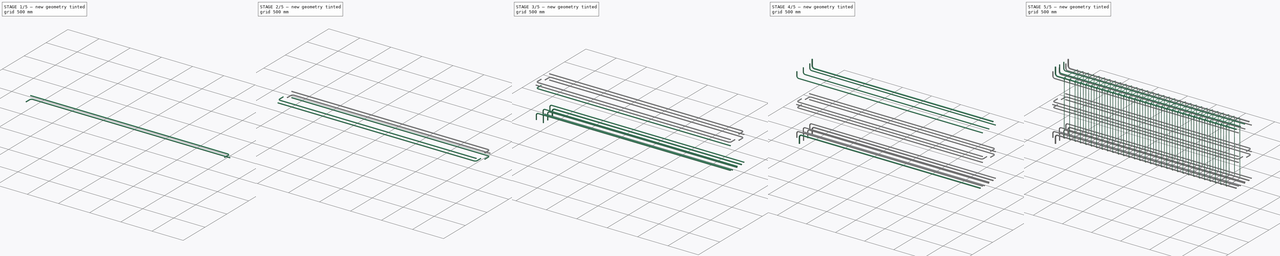
[diagram: build sequence overview — one tinted view per stage of 5, left to right]
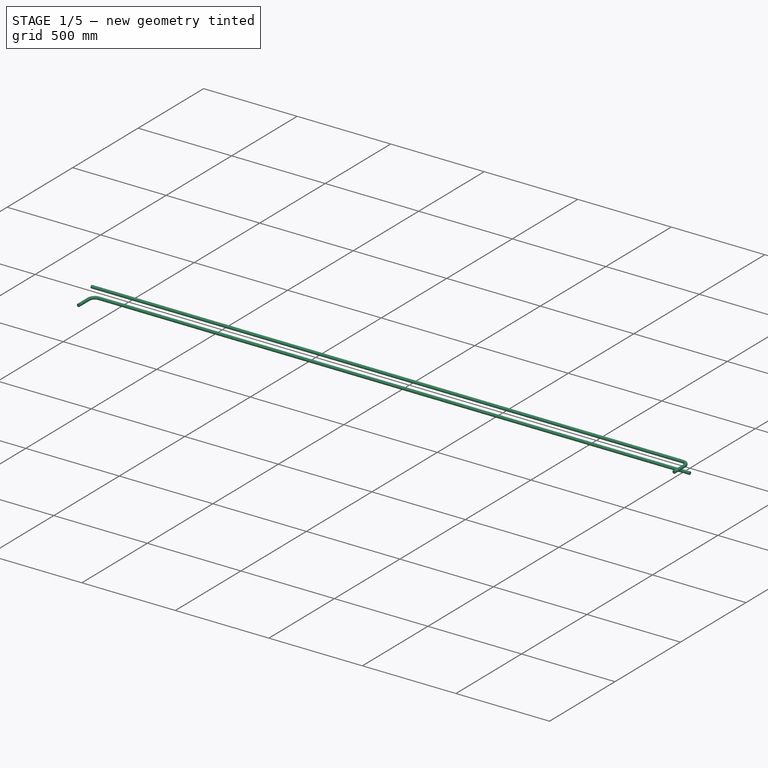
[diagram: stage 1 of 5 — iso view after this stage's code; geometry added in this stage tinted green]
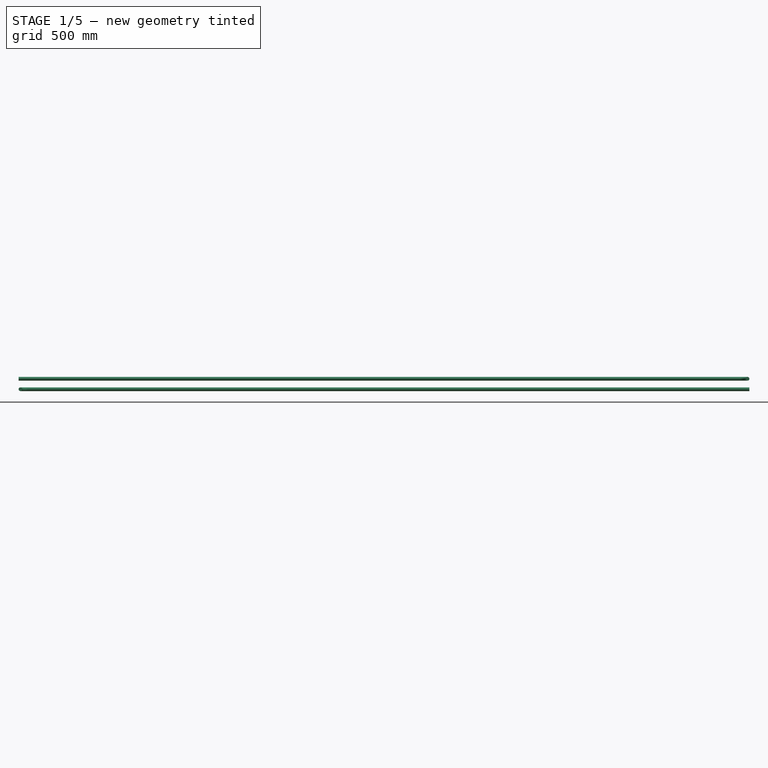
[diagram: stage 1 of 5 — front view after this stage's code; geometry added in this stage tinted green]
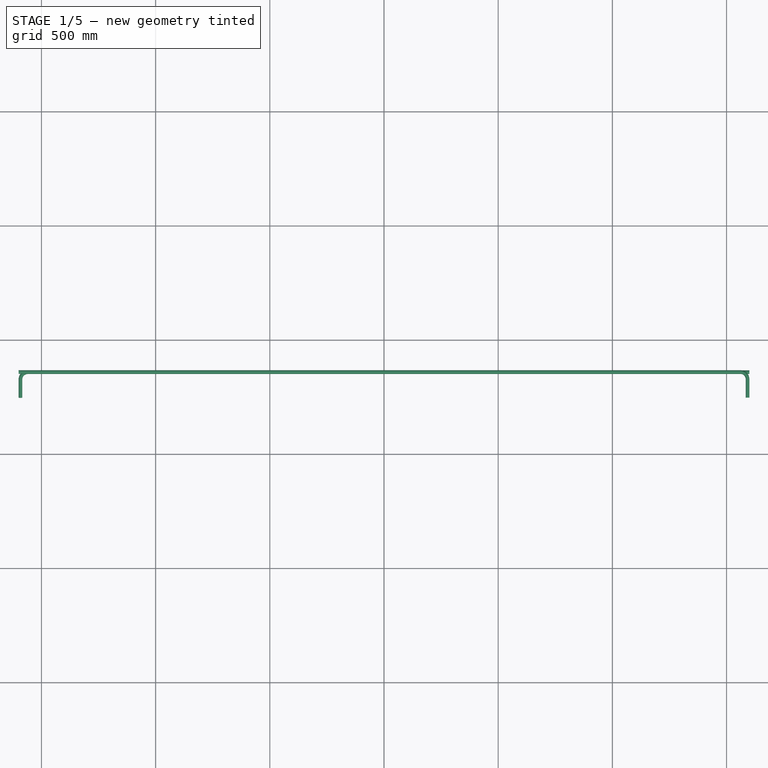
[diagram: stage 1 of 5 — top view after this stage's code; geometry added in this stage tinted green]
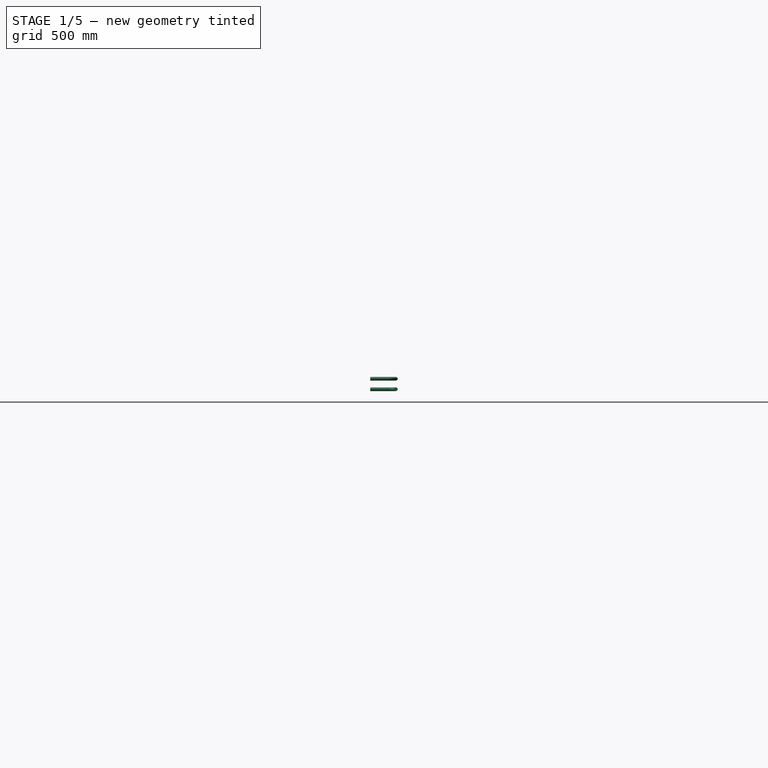
[diagram: stage 1 of 5 — right view after this stage's code; geometry added in this stage tinted green]
FCSTD DOCUMENT  (FreeCAD 0.21R33771 (Git))
Label: Beam Reinforcement
License: All rights reserved
LicenseURL: https://en.wikipedia.org/wiki/All_rights_reserved
objects: Part::FeaturePython×16, Sketcher::SketchObject×14, App::DocumentObjectGroupPython×7, Part::Part2DObjectPython×3
note: 33 computed .brp shape members not serialized (recipe doc carries the construction recipe); baked Part::Feature solids carry a one-line shape summary decoded from their .brp

FEATURE [Part::Part2DObjectPython] Rectangle  # Draft 2D object (typed FeaturePython)
  Area = 1200000
  ChamferSize = 0
  Columns = 1
  FilletRadius = 0
  Height = 400
  Length = 3000
  MakeFace = true
  Rows = 1
FEATURE [Part::FeaturePython] Structure  # Arch/BIM 13 (typed FeaturePython)
  Base = -> Rectangle
  BaseMirror = false
  BaseOffsetX = 0
  BaseOffsetY = 0
  BasePerpendicularToTool = false
  BaseRotation = 0
  ComputedLength = 1000
  FaceMaker = 0
  Height = 1000
  HorizontalArea = 1200000
  IfcData = attributes={"GlobalId": {"name": "GlobalId", "type": "IfcGloballyUniqueId", "is_enum": false, "enum_values": []}, "Description": {"... (+484 chars omitted),+1 more (map truncated)
  IfcType = 13
  Length = 0
  MoveBase = false
  MoveWithHost = false
  Nodes = (2) [(1500,200,0),(1500,200,1000)]
  NodesOffset = 0
  Normal = (0,0,0)
  PerimeterLength = 6800
  PredefinedType = 0
  ToolOffsetFirst = 0
  ToolOffsetLast = 0
  VerticalArea = 6800000
  Width = 100
FEATURE [Sketcher::SketchObject] Sketch012
  FullyConstrained = false
  MapMode = 5
  Placement = pos=(0,0,0) rot=(1,0,0;3.14159rad)
  Support = -> [Structure]
  sketch-geometry (2):
    g0: LineSegment StartX=-92 StartY=-247 StartZ=0 EndX=-92 EndY=-359 EndZ=0
    g1: LineSegment StartX=-92 StartY=-359 StartZ=0 EndX=3100 EndY=-359 EndZ=0
FEATURE [Part::FeaturePython] Rebar013  label="LShapeRebar012"  # Arch/BIM 110 (typed FeaturePython)
  Amount = 1
  AmountCheck = true
  Base = -> Sketch012
  BottomCover = 33
  Diameter = 16
  Direction = (0,0,0)
  Distance = 0
  FrontCover = 492
  HorizontalArea = 0
  Host = -> Structure
  IfcType = 110
  LeftCover = -100
  Length = 3304
  Mark = LShapeRebar012
  MoveBase = false
  MoveWithHost = false
  OffsetEnd = 500
  OffsetStart = 500
  Orientation = Bottom Left
  PerimeterLength = 0
  PlacementList = 1 placements: [(0,0,500)]
  RebarShape = 2
  RightCover = -100
  Rounding = 2
  Spacing = 0
  TopCover = 247
  TotalLength = 3304
  TrueSpacing = 1
  VerticalArea = 0
FEATURE [Sketcher::SketchObject] Sketch013
  FullyConstrained = false
  MapMode = 5
  Placement = pos=(0,0,0) rot=(1,0,0;3.14159rad)
  Support = -> [Structure]
  sketch-geometry (2):
    g0: LineSegment StartX=3092 StartY=-247 StartZ=0 EndX=3092 EndY=-359 EndZ=0
    g1: LineSegment StartX=3092 StartY=-359 StartZ=0 EndX=-100 EndY=-359 EndZ=0
FEATURE [Part::FeaturePython] Rebar014  label="LShapeRebar013"  # Arch/BIM 110 (typed FeaturePython)
  Amount = 1
  AmountCheck = true
  Base = -> Sketch013
  BottomCover = 33
  Diameter = 16
  Direction = (0,0,0)
  Distance = 0
  FrontCover = 538
  HorizontalArea = 0
  Host = -> Structure
  IfcType = 110
  LeftCover = -100
  Length = 3304
  Mark = LShapeRebar013
  MoveBase = false
  MoveWithHost = false
  OffsetEnd = 454
  OffsetStart = 546
  Orientation = Bottom Right
  PerimeterLength = 0
  PlacementList = 1 placements: [(0,0,546)]
  RebarShape = 2
  RightCover = -100
  Rounding = 2
  Spacing = 0
  TopCover = 247
  TotalLength = 3304
  TrueSpacing = 1
  VerticalArea = 0
FEATURE [App::DocumentObjectGroupPython] RightRebars  # scripted group (container) (typed FeaturePython)
  Group = -> [Rebar012,Rebar013,Rebar014]
  HookExtension = [80,80,80]
  HookOrientation = Front Inside | Rear Inside | Front Inside
  LRebarRounding = [2,2,2]
  NumberDiameterOffset = 1#16@-100+1#16@-100+1#16@-100
  RebarSpacing = 30
  RebarType = LShapeRebar | LShapeRebar | LShapeRebar
  RightRebars = -> [Rebar012,Rebar013,Rebar014]
FEATURE [App::DocumentObjectGroupPython] ShearReinforcement  # scripted group (container) (typed FeaturePython)
  Group = -> [LeftRebars,RightRebars]
  ShearReinforcementGroups = -> [LeftRebars,RightRebars]
FEATURE [App::DocumentObjectGroupPython] BeamReinforcement  # scripted group (container) (typed FeaturePython)
  Group = -> [Stirrups,TopReinforcement,BottomReinforcement,ShearReinforcement]
  ReinforcementGroups = -> [Stirrups,TopReinforcement,BottomReinforcement,ShearReinforcement]
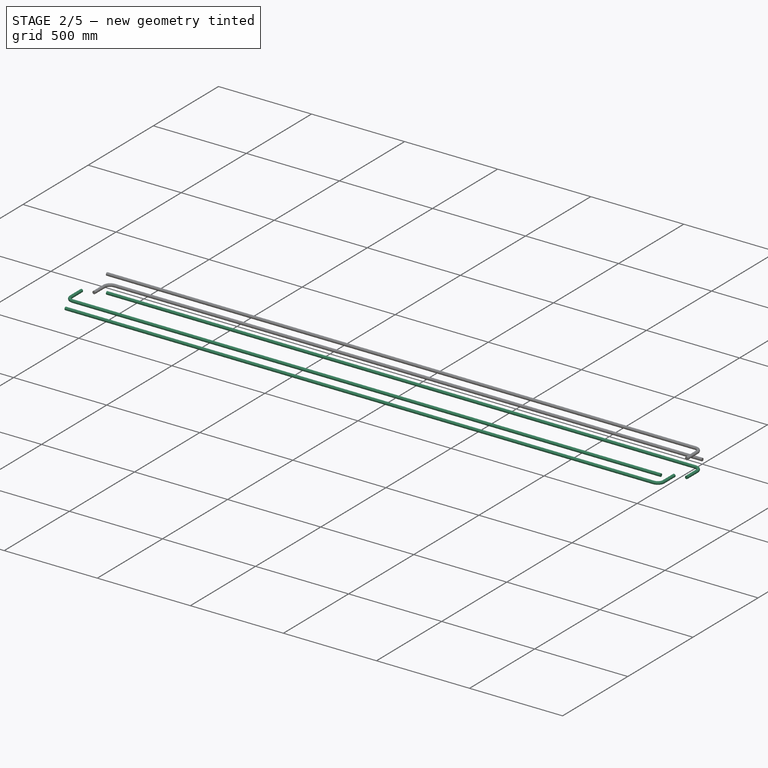
[diagram: stage 2 of 5 — iso view after this stage's code; geometry added in this stage tinted green]
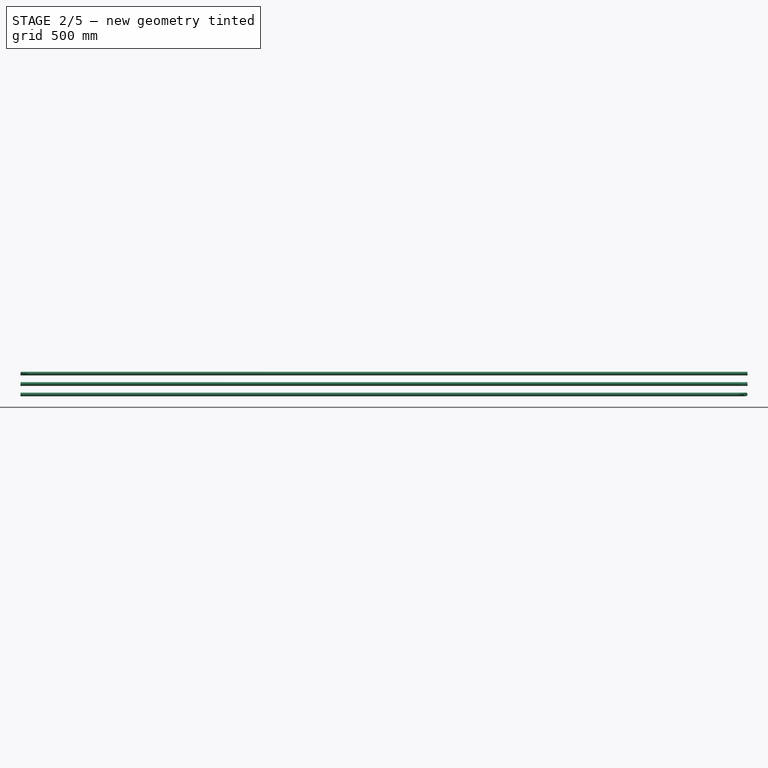
[diagram: stage 2 of 5 — front view after this stage's code; geometry added in this stage tinted green]
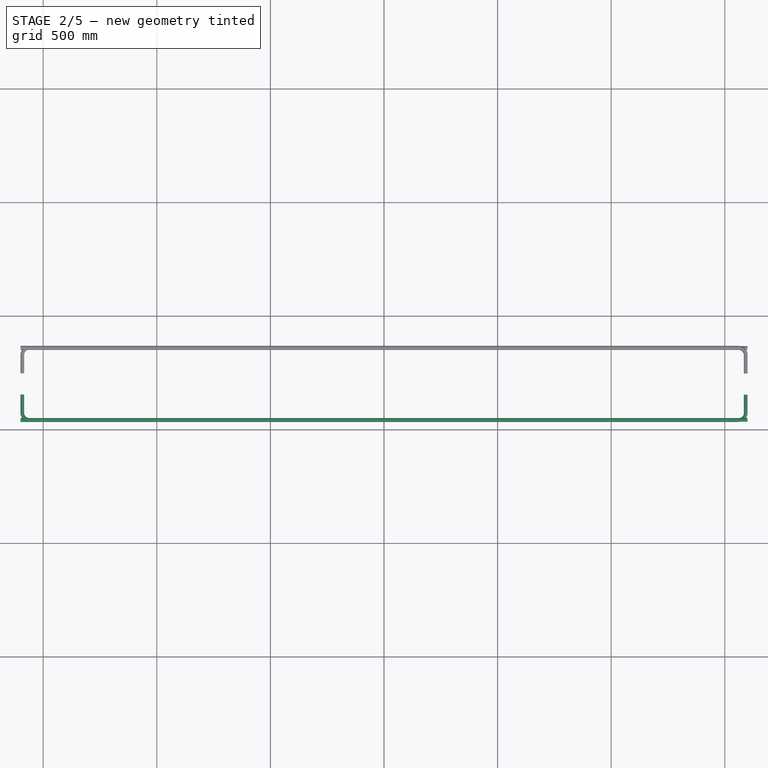
[diagram: stage 2 of 5 — top view after this stage's code; geometry added in this stage tinted green]
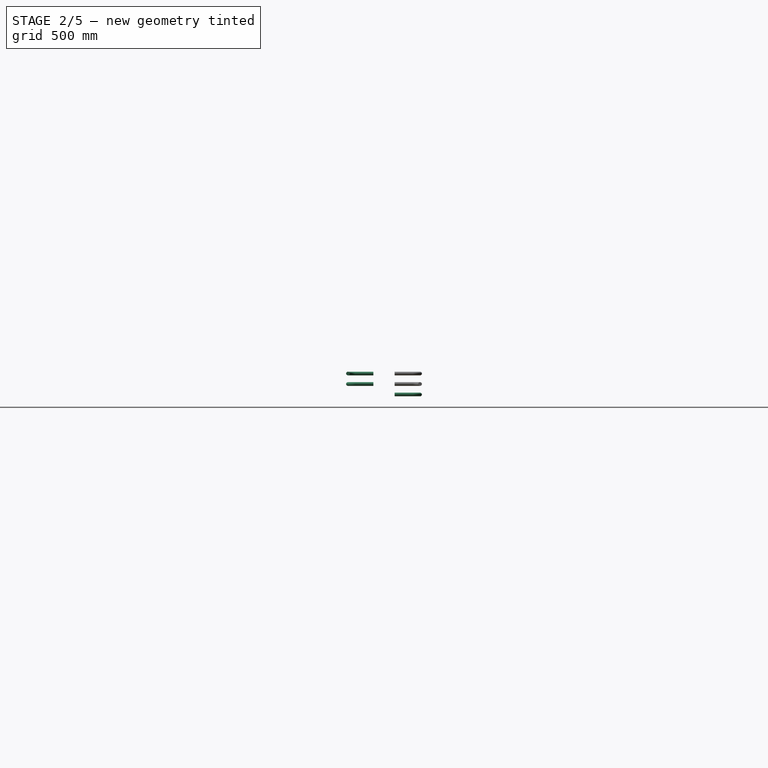
[diagram: stage 2 of 5 — right view after this stage's code; geometry added in this stage tinted green]
FEATURE [Sketcher::SketchObject] Sketch009
  FullyConstrained = false
  MapMode = 5
  Placement = pos=(0,0,0) rot=(1,0,0;3.14159rad)
  Support = -> [Structure]
  sketch-geometry (2):
    g0: LineSegment StartX=3092 StartY=-153 StartZ=0 EndX=3092 EndY=-41 EndZ=0
    g1: LineSegment StartX=3092 StartY=-41 StartZ=0 EndX=-100 EndY=-41 EndZ=0
FEATURE [Part::FeaturePython] Rebar010  label="LShapeRebar009"  # Arch/BIM 110 (typed FeaturePython)
  Amount = 1
  AmountCheck = true
  Base = -> Sketch009
  BottomCover = 247
  Diameter = 16
  Direction = (0,0,0)
  Distance = 0
  FrontCover = 492
  HorizontalArea = 0
  Host = -> Structure
  IfcType = 110
  LeftCover = -100
  Length = 3304
  Mark = LShapeRebar009
  MoveBase = false
  MoveWithHost = false
  OffsetEnd = 500
  OffsetStart = 500
  Orientation = Top Right
  PerimeterLength = 0
  PlacementList = 1 placements: [(0,0,500)]
  RebarShape = 2
  RightCover = -100
  Rounding = 2
  Spacing = 0
  TopCover = 33
  TotalLength = 3304
  TrueSpacing = 1
  VerticalArea = 0
FEATURE [Sketcher::SketchObject] Sketch010
  FullyConstrained = false
  MapMode = 5
  Placement = pos=(0,0,0) rot=(1,0,0;3.14159rad)
  Support = -> [Structure]
  sketch-geometry (2):
    g0: LineSegment StartX=-92 StartY=-153 StartZ=0 EndX=-92 EndY=-41 EndZ=0
    g1: LineSegment StartX=-92 StartY=-41 StartZ=0 EndX=3100 EndY=-41 EndZ=0
FEATURE [Part::FeaturePython] Rebar011  label="LShapeRebar010"  # Arch/BIM 110 (typed FeaturePython)
  Amount = 1
  AmountCheck = true
  Base = -> Sketch010
  BottomCover = 247
  Diameter = 16
  Direction = (0,0,0)
  Distance = 0
  FrontCover = 538
  HorizontalArea = 0
  Host = -> Structure
  IfcType = 110
  LeftCover = -100
  Length = 3304
  Mark = LShapeRebar010
  MoveBase = false
  MoveWithHost = false
  OffsetEnd = 454
  OffsetStart = 546
  Orientation = Top Left
  PerimeterLength = 0
  PlacementList = 1 placements: [(0,0,546)]
  RebarShape = 2
  RightCover = -100
  Rounding = 2
  Spacing = 0
  TopCover = 33
  TotalLength = 3304
  TrueSpacing = 1
  VerticalArea = 0
FEATURE [App::DocumentObjectGroupPython] LeftRebars  # scripted group (container) (typed FeaturePython)
  Group = -> [Rebar009,Rebar010,Rebar011]
  HookExtension = [80,80,80]
  HookOrientation = Rear Inside | Front Inside | Rear Inside
  LRebarRounding = [2,2,2]
  LeftRebars = -> [Rebar009,Rebar010,Rebar011]
  NumberDiameterOffset = 1#16@-100+1#16@-100+1#16@-100
  RebarSpacing = 30
  RebarType = LShapeRebar | LShapeRebar | LShapeRebar
FEATURE [Sketcher::SketchObject] Sketch011
  FullyConstrained = false
  MapMode = 5
  Placement = pos=(0,0,0) rot=(1,0,0;3.14159rad)
  Support = -> [Structure]
  sketch-geometry (2):
    g0: LineSegment StartX=3092 StartY=-247 StartZ=0 EndX=3092 EndY=-359 EndZ=0
    g1: LineSegment StartX=3092 StartY=-359 StartZ=0 EndX=-100 EndY=-359 EndZ=0
FEATURE [Part::FeaturePython] Rebar012  label="LShapeRebar011"  # Arch/BIM 110 (typed FeaturePython)
  Amount = 1
  AmountCheck = true
  Base = -> Sketch011
  BottomCover = 33
  Diameter = 16
  Direction = (0,0,0)
  Distance = 0
  FrontCover = 446
  HorizontalArea = 0
  Host = -> Structure
  IfcType = 110
  LeftCover = -100
  Length = 3304
  Mark = LShapeRebar011
  MoveBase = false
  MoveWithHost = false
  OffsetEnd = 546
  OffsetStart = 454
  Orientation = Bottom Right
  PerimeterLength = 0
  PlacementList = 1 placements: [(0,0,454)]
  RebarShape = 2
  RightCover = -100
  Rounding = 2
  Spacing = 0
  TopCover = 247
  TotalLength = 3304
  TrueSpacing = 1
  VerticalArea = 0
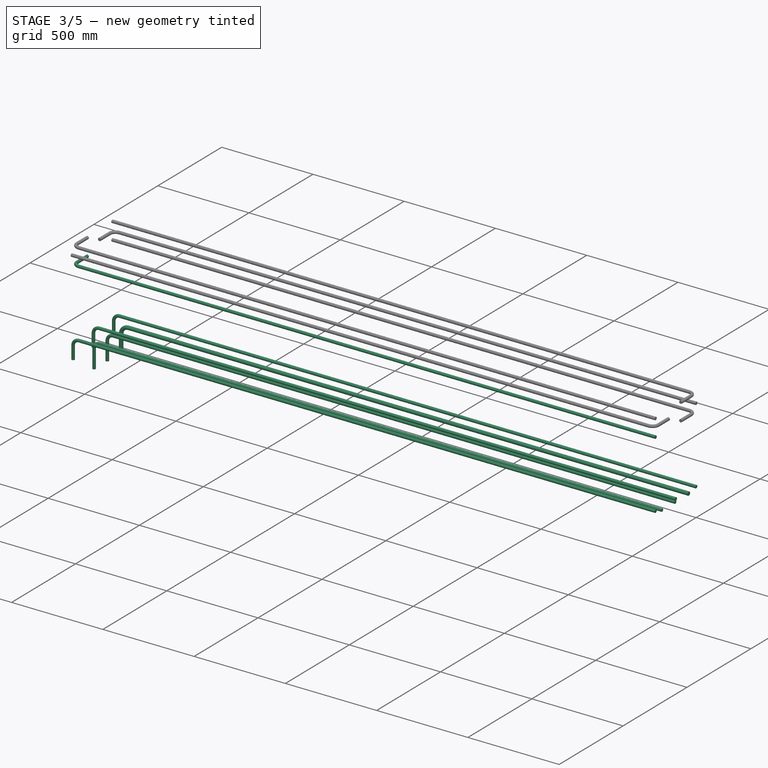
[diagram: stage 3 of 5 — iso view after this stage's code; geometry added in this stage tinted green]
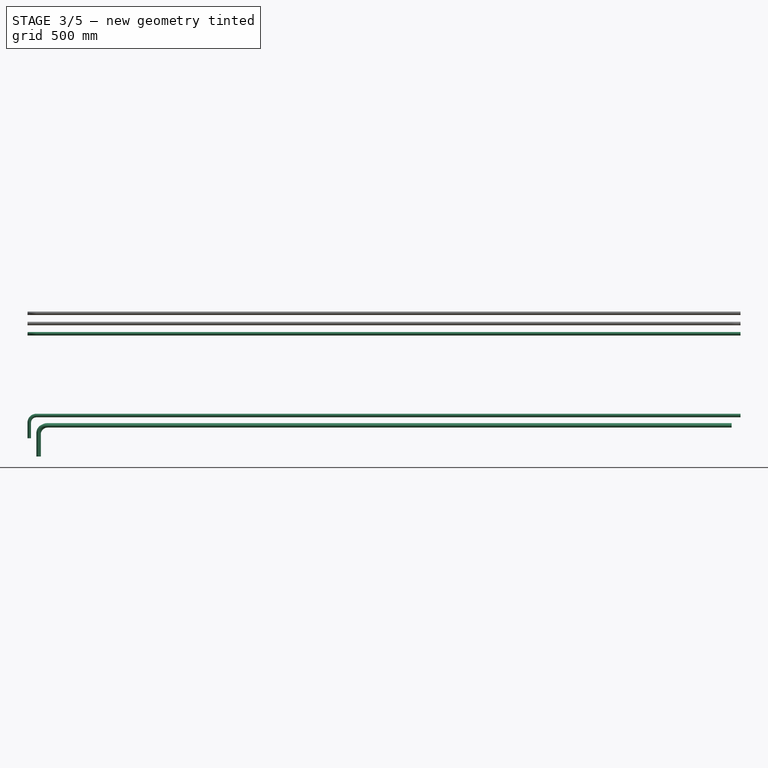
[diagram: stage 3 of 5 — front view after this stage's code; geometry added in this stage tinted green]
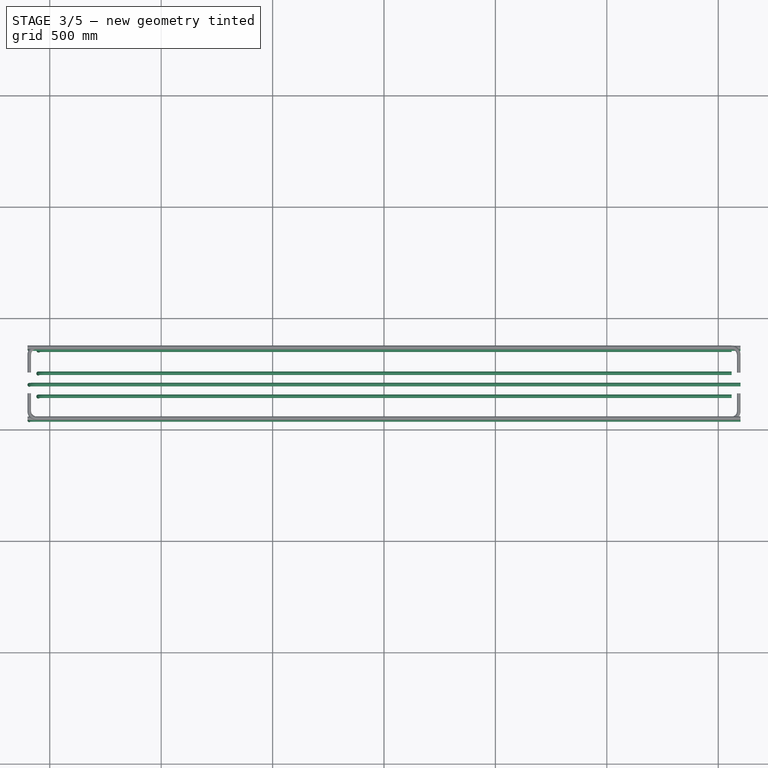
[diagram: stage 3 of 5 — top view after this stage's code; geometry added in this stage tinted green]
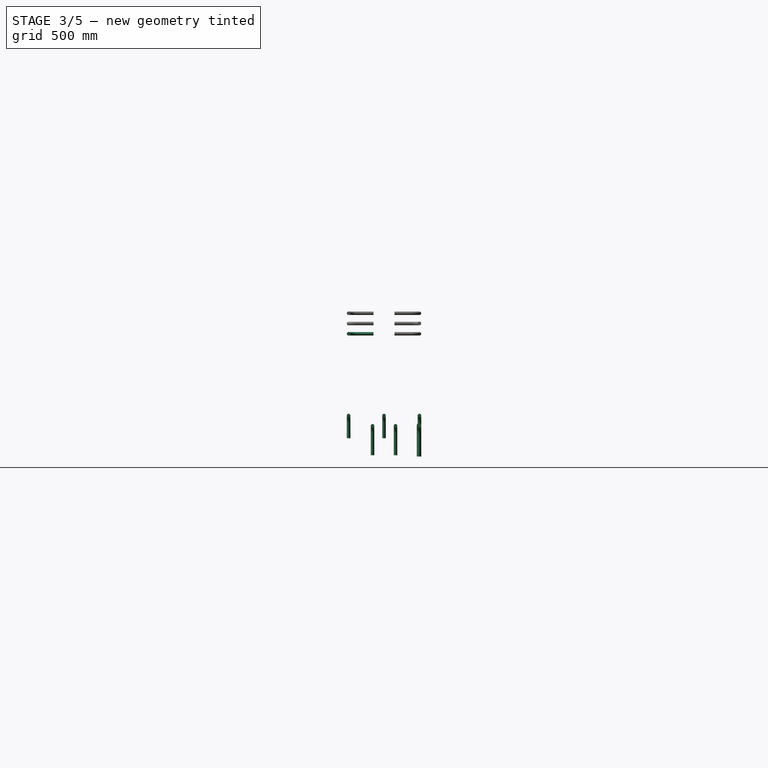
[diagram: stage 3 of 5 — right view after this stage's code; geometry added in this stage tinted green]
FEATURE [Sketcher::SketchObject] Sketch005
  FullyConstrained = false
  MapMode = 5
  Placement = pos=(0,0,0) rot=(1,0,0;1.5708rad)
  Support = -> [Structure]
  sketch-geometry (2):
    g0: LineSegment StartX=-52 StartY=-91 StartZ=0 EndX=-52 EndY=41 EndZ=0
    g1: LineSegment StartX=-52 StartY=41 StartZ=0 EndX=3060 EndY=41 EndZ=0
FEATURE [Part::FeaturePython] Rebar006  label="LShapeRebar005"  # Arch/BIM 110 (typed FeaturePython)
  Amount = 2
  AmountCheck = true
  Base = -> Sketch005
  BottomCover = 33
  Diameter = 16
  Direction = (0,0,0)
  Distance = 0
  FrontCover = 140.333
  HorizontalArea = 0
  Host = -> Structure
  IfcType = 110
  LeftCover = -60
  Length = 3244
  Mark = LShapeRebar005
  MoveBase = false
  MoveWithHost = false
  OffsetEnd = 148.333
  OffsetStart = 148.333
  Orientation = Bottom Left
  PerimeterLength = 0
  PlacementList = 2 placements: [(0,148.333,-3.29366e-14),(0,251.667,-5.58812e-14)]
  RebarShape = 2
  RightCover = -60
  Rounding = 2
  Spacing = 103.333
  TopCover = 1091
  TotalLength = 6488
  TrueSpacing = 2
  VerticalArea = 0
FEATURE [Sketcher::SketchObject] Sketch006
  FullyConstrained = false
  MapMode = 5
  Placement = pos=(0,0,0) rot=(1,0,0;1.5708rad)
  Support = -> [Structure]
  sketch-geometry (2):
    g0: LineSegment StartX=-50 StartY=-97 StartZ=0 EndX=-50 EndY=43 EndZ=0
    g1: LineSegment StartX=-50 StartY=43 StartZ=0 EndX=3060 EndY=43 EndZ=0
FEATURE [Part::FeaturePython] Rebar007  label="LShapeRebar006"  # Arch/BIM 110 (typed FeaturePython)
  Amount = 1
  AmountCheck = true
  Base = -> Sketch006
  BottomCover = 33
  Diameter = 20
  Direction = (0,0,0)
  Distance = 0
  FrontCover = 347
  HorizontalArea = 0
  Host = -> Structure
  IfcType = 110
  LeftCover = -60
  Length = 3250
  Mark = LShapeRebar006
  MoveBase = false
  MoveWithHost = false
  OffsetEnd = 43
  OffsetStart = 357
  Orientation = Bottom Left
  PerimeterLength = 0
  PlacementList = 1 placements: [(0,357,-7.92699e-14)]
  RebarShape = 2
  RightCover = -60
  Rounding = 2
  Spacing = 0
  TopCover = 1097
  TotalLength = 3250
  TrueSpacing = 1
  VerticalArea = 0
FEATURE [Sketcher::SketchObject] Sketch007
  FullyConstrained = false
  MapMode = 5
  Placement = pos=(0,0,0) rot=(1,0,0;1.5708rad)
  Support = -> [Structure]
  sketch-geometry (2):
    g0: LineSegment StartX=-92 StartY=-15 StartZ=0 EndX=-92 EndY=87 EndZ=0
    g1: LineSegment StartX=-92 StartY=87 StartZ=0 EndX=3100 EndY=87 EndZ=0
FEATURE [Part::FeaturePython] Rebar008  label="LShapeRebar007"  # Arch/BIM 110 (typed FeaturePython)
  Amount = 3
  AmountCheck = true
  Base = -> Sketch007
  BottomCover = 79
  Diameter = 16
  Direction = (0,0,0)
  Distance = 0
  FrontCover = 33
  HorizontalArea = 0
  Host = -> Structure
  IfcType = 110
  LeftCover = -100
  Length = 3294
  Mark = LShapeRebar007
  MoveBase = false
  MoveWithHost = false
  OffsetEnd = 41
  OffsetStart = 41
  Orientation = Bottom Left
  PerimeterLength = 0
  PlacementList = 3 placements: arithmetic series from (0,41,-9.10383e-15) step (0,159,-3.53051e-14) to (0,359,-7.9714e-14)
  RebarShape = 2
  RightCover = -100
  Rounding = 2
  Spacing = 159
  TopCover = 1015
  TotalLength = 9882
  TrueSpacing = 3
  VerticalArea = 0
FEATURE [App::DocumentObjectGroupPython] BottomReinforcement  # scripted group (container) (typed FeaturePython)
  BottomRebars = -> [Rebar005,Rebar006,Rebar007,Rebar008]
  Group = -> [Rebar005,Rebar006,Rebar007,Rebar008]
  LayerSpacing = [30,30]
  NumberDiameterOffset = 1#20@-60+2#16@-60+1#20@-60 | 3#16@-100
FEATURE [Sketcher::SketchObject] Sketch008
  FullyConstrained = false
  MapMode = 5
  Placement = pos=(0,0,0) rot=(1,0,0;3.14159rad)
  Support = -> [Structure]
  sketch-geometry (2):
    g0: LineSegment StartX=-92 StartY=-153 StartZ=0 EndX=-92 EndY=-41 EndZ=0
    g1: LineSegment StartX=-92 StartY=-41 StartZ=0 EndX=3100 EndY=-41 EndZ=0
FEATURE [Part::FeaturePython] Rebar009  label="LShapeRebar008"  # Arch/BIM 110 (typed FeaturePython)
  Amount = 1
  AmountCheck = true
  Base = -> Sketch008
  BottomCover = 247
  Diameter = 16
  Direction = (0,0,0)
  Distance = 0
  FrontCover = 446
  HorizontalArea = 0
  Host = -> Structure
  IfcType = 110
  LeftCover = -100
  Length = 3304
  Mark = LShapeRebar008
  MoveBase = false
  MoveWithHost = false
  OffsetEnd = 546
  OffsetStart = 454
  Orientation = Top Left
  PerimeterLength = 0
  PlacementList = 1 placements: [(0,0,454)]
  RebarShape = 2
  RightCover = -100
  Rounding = 2
  Spacing = 0
  TopCover = 33
  TotalLength = 3304
  TrueSpacing = 1
  VerticalArea = 0
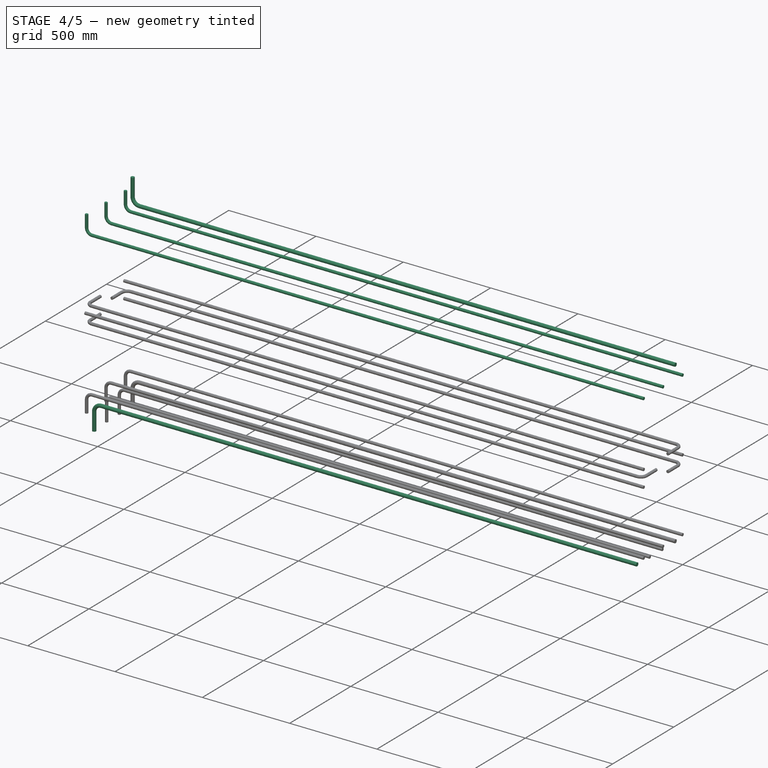
[diagram: stage 4 of 5 — iso view after this stage's code; geometry added in this stage tinted green]
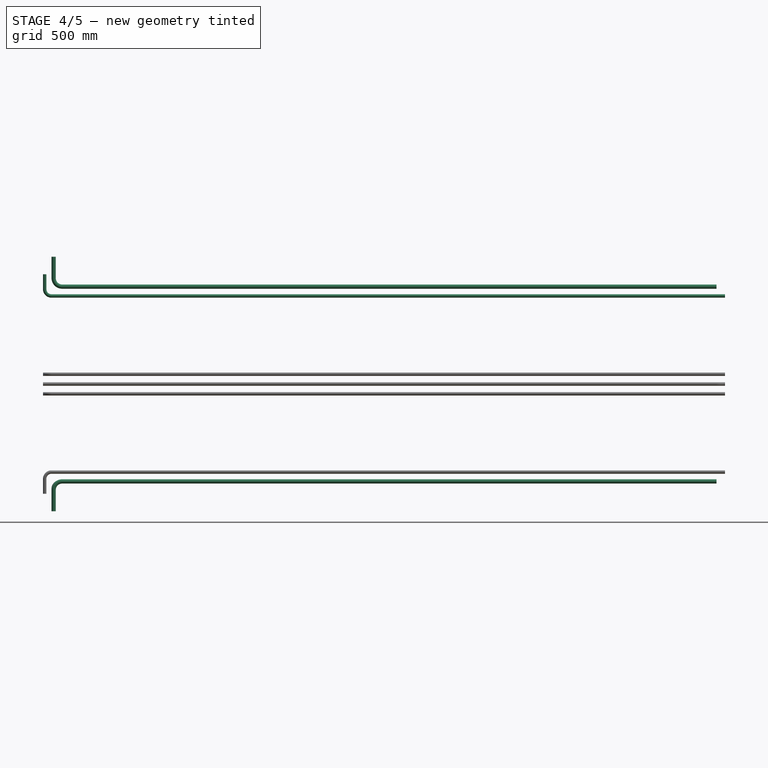
[diagram: stage 4 of 5 — front view after this stage's code; geometry added in this stage tinted green]
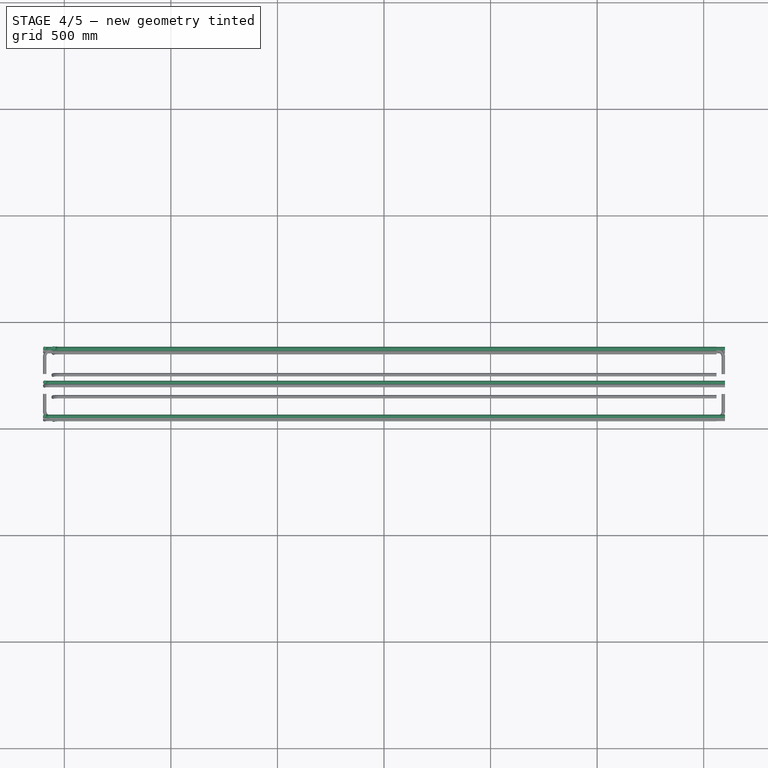
[diagram: stage 4 of 5 — top view after this stage's code; geometry added in this stage tinted green]
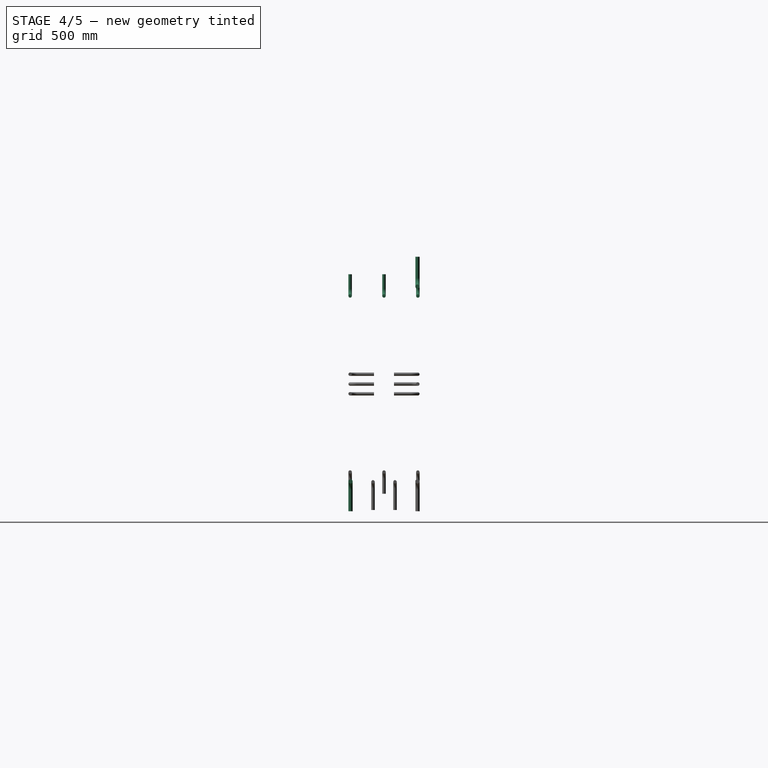
[diagram: stage 4 of 5 — right view after this stage's code; geometry added in this stage tinted green]
FEATURE [Sketcher::SketchObject] Sketch002
  FullyConstrained = false
  MapMode = 5
  Placement = pos=(0,0,0) rot=(1,0,0;1.5708rad)
  Support = -> [Structure]
  sketch-geometry (2):
    g0: LineSegment StartX=-50 StartY=1097 StartZ=0 EndX=-50 EndY=957 EndZ=0
    g1: LineSegment StartX=-50 StartY=957 StartZ=0 EndX=3060 EndY=957 EndZ=0
FEATURE [Part::FeaturePython] Rebar003  label="LShapeRebar002"  # Arch/BIM 110 (typed FeaturePython)
  Amount = 1
  AmountCheck = true
  Base = -> Sketch002
  BottomCover = 1097
  Diameter = 20
  Direction = (0,0,0)
  Distance = 0
  FrontCover = 347
  HorizontalArea = 0
  Host = -> Structure
  IfcType = 110
  LeftCover = -60
  Length = 3250
  Mark = LShapeRebar002
  MoveBase = false
  MoveWithHost = false
  OffsetEnd = 43
  OffsetStart = 357
  Orientation = Top Left
  PerimeterLength = 0
  PlacementList = 1 placements: [(0,357,-7.92699e-14)]
  RebarShape = 2
  RightCover = -60
  Rounding = 2
  Spacing = 0
  TopCover = 33
  TotalLength = 3250
  TrueSpacing = 1
  VerticalArea = 0
FEATURE [Sketcher::SketchObject] Sketch003
  FullyConstrained = false
  MapMode = 5
  Placement = pos=(0,0,0) rot=(1,0,0;1.5708rad)
  Support = -> [Structure]
  sketch-geometry (2):
    g0: LineSegment StartX=-92 StartY=1015 StartZ=0 EndX=-92 EndY=913 EndZ=0
    g1: LineSegment StartX=-92 StartY=913 StartZ=0 EndX=3100 EndY=913 EndZ=0
FEATURE [Part::FeaturePython] Rebar004  label="LShapeRebar003"  # Arch/BIM 110 (typed FeaturePython)
  Amount = 3
  AmountCheck = true
  Base = -> Sketch003
  BottomCover = 1015
  Diameter = 16
  Direction = (0,0,0)
  Distance = 0
  FrontCover = 33
  HorizontalArea = 0
  Host = -> Structure
  IfcType = 110
  LeftCover = -100
  Length = 3294
  Mark = LShapeRebar003
  MoveBase = false
  MoveWithHost = false
  OffsetEnd = 41
  OffsetStart = 41
  Orientation = Top Left
  PerimeterLength = 0
  PlacementList = 3 placements: arithmetic series from (0,41,-9.10383e-15) step (0,159,-3.53051e-14) to (0,359,-7.9714e-14)
  RebarShape = 2
  RightCover = -100
  Rounding = 2
  Spacing = 159
  TopCover = 79
  TotalLength = 9882
  TrueSpacing = 3
  VerticalArea = 0
FEATURE [App::DocumentObjectGroupPython] TopReinforcement  # scripted group (container) (typed FeaturePython)
  Group = -> [Rebar001,Rebar002,Rebar003,Rebar004]
  LayerSpacing = [30,30]
  NumberDiameterOffset = 1#20@-60+2#16@-60+1#20@-60 | 3#16@-100
  TopRebars = -> [Rebar001,Rebar002,Rebar003,Rebar004]
FEATURE [Sketcher::SketchObject] Sketch004
  FullyConstrained = false
  MapMode = 5
  Placement = pos=(0,0,0) rot=(1,0,0;1.5708rad)
  Support = -> [Structure]
  sketch-geometry (2):
    g0: LineSegment StartX=-50 StartY=-97 StartZ=0 EndX=-50 EndY=43 EndZ=0
    g1: LineSegment StartX=-50 StartY=43 StartZ=0 EndX=3060 EndY=43 EndZ=0
FEATURE [Part::FeaturePython] Rebar005  label="LShapeRebar004"  # Arch/BIM 110 (typed FeaturePython)
  Amount = 1
  AmountCheck = true
  Base = -> Sketch004
  BottomCover = 33
  Diameter = 20
  Direction = (0,0,0)
  Distance = 0
  FrontCover = 33
  HorizontalArea = 0
  Host = -> Structure
  IfcType = 110
  LeftCover = -60
  Length = 3250
  Mark = LShapeRebar004
  MoveBase = false
  MoveWithHost = false
  OffsetEnd = 357
  OffsetStart = 43
  Orientation = Bottom Left
  PerimeterLength = 0
  PlacementList = 1 placements: [(0,43,-9.54792e-15)]
  RebarShape = 2
  RightCover = -60
  Rounding = 2
  Spacing = 0
  TopCover = 1097
  TotalLength = 3250
  TrueSpacing = 1
  VerticalArea = 0
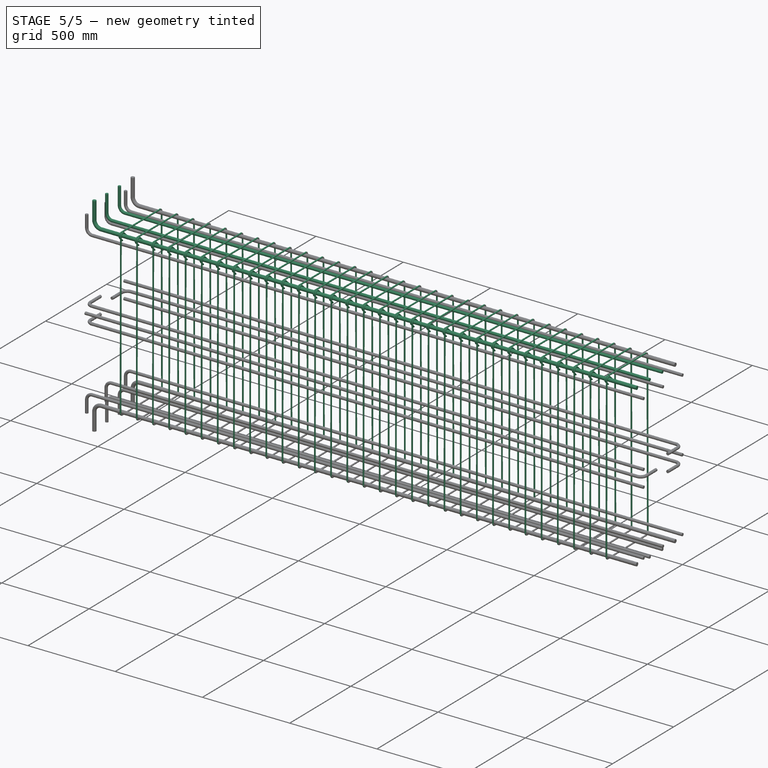
[diagram: stage 5 of 5 — iso view after this stage's code; geometry added in this stage tinted green]
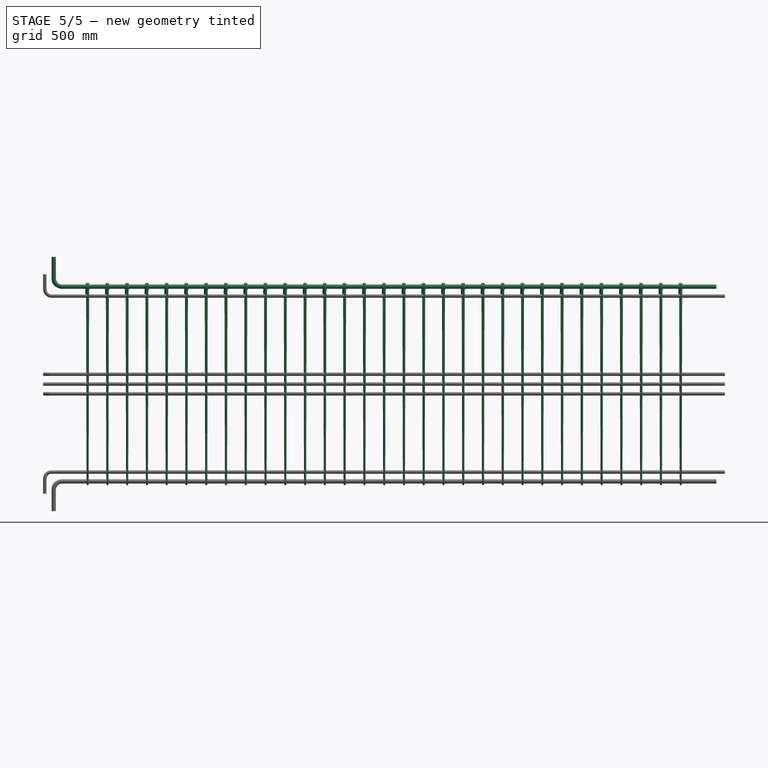
[diagram: stage 5 of 5 — front view after this stage's code; geometry added in this stage tinted green]
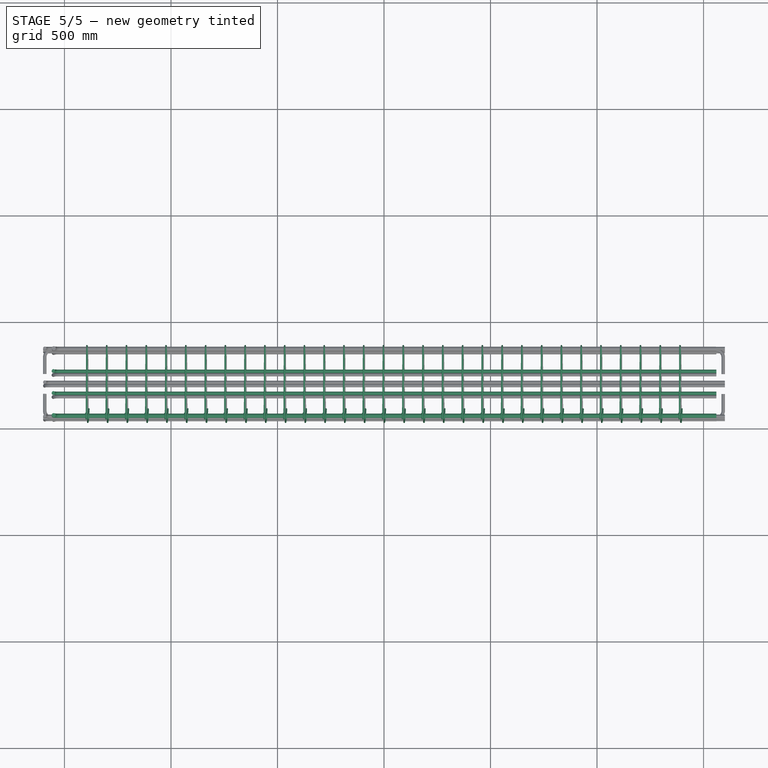
[diagram: stage 5 of 5 — top view after this stage's code; geometry added in this stage tinted green]
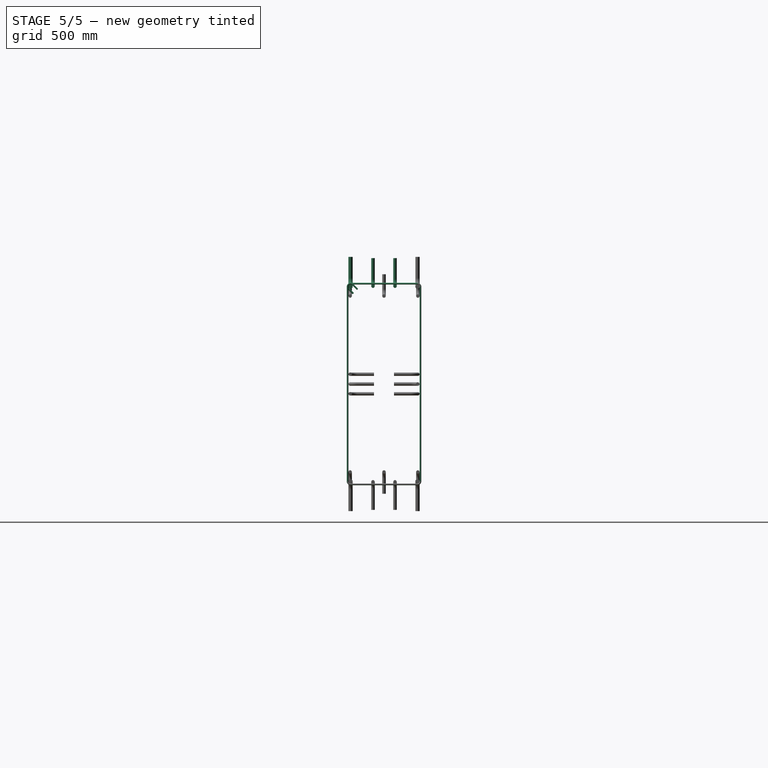
[diagram: stage 5 of 5 — right view after this stage's code; geometry added in this stage tinted green]
FEATURE [Part::Part2DObjectPython] Wire  # Draft 2D object (typed FeaturePython)
  Area = 0
  ChamferSize = 0
  Closed = false
  End = (55.7279,324.473,-10.0673)
  FilletRadius = 0
  Length = 6739.27
  MakeFace = true
  Points = (7) [(75.5269,344.272,2.01346),(29,390.799,0),(29,29,-2.01346),(2971,29,-4.02692),(2971,371,-6.04038),(9.20101,371,-8.05384),(55.7279,324.473,-10.0673)]
  Start = (75.5269,344.272,2.01346)
  Subdivisions = 0
  Support = -> [Structure]
FEATURE [Part::Part2DObjectPython] Wire001  # Draft 2D object (typed FeaturePython)
  Area = 0
  ChamferSize = 0
  Closed = false
  End = (2989.42,55.7279,924.473)
  FilletRadius = 0
  Length = 2739.28
  MakeFace = true
  Points = (7) [(3002.12,75.5269,944.272),(3000,29,990.799),(2997.88,29,29),(2995.77,371,29),(2993.65,371,971),(2991.54,9.20101,971),(2989.42,55.7279,924.473)]
  Start = (3002.12,75.5269,944.272)
  Subdivisions = 0
  Support = -> [Structure]
FEATURE [Part::FeaturePython] Rebar  label="Stirrup"  # Arch/BIM 110 (typed FeaturePython)
  Amount = 31
  AmountCheck = false
  Base = -> Wire001
  BentAngle = 135
  BentFactor = 4
  BottomCover = 25
  Diameter = 8
  Direction = (-1,0,0)
  Distance = 0
  FrontCover = 100
  HorizontalArea = 0
  Host = -> Structure
  IfcType = 110
  LeftCover = 25
  Length = 2739.28
  Mark = Stirrup
  MoveBase = false
  MoveWithHost = false
  OffsetEnd = 104
  OffsetStart = 104
  PerimeterLength = 0
  PlacementList = 31 placements: arithmetic series from (-104,0,0) step (-92.8,0,0) to (-2888,0,0)
  RebarShape = 3
  RightCover = 25
  Rounding = 1.75
  Spacing = 92.8
  TopCover = 25
  TotalLength = 84917.7
  TrueSpacing = 100
  VerticalArea = 0
FEATURE [App::DocumentObjectGroupPython] Stirrups  # scripted group (container) (typed FeaturePython)
  Group = -> [Rebar]
  Stirrups = -> [Rebar]
  StirrupsConfiguration = Two Legged Stirrups
FEATURE [Sketcher::SketchObject] Sketch
  FullyConstrained = false
  MapMode = 5
  Placement = pos=(0,0,0) rot=(1,0,0;1.5708rad)
  Support = -> [Structure]
  sketch-geometry (2):
    g0: LineSegment StartX=-50 StartY=1097 StartZ=0 EndX=-50 EndY=957 EndZ=0
    g1: LineSegment StartX=-50 StartY=957 StartZ=0 EndX=3060 EndY=957 EndZ=0
FEATURE [Part::FeaturePython] Rebar001  label="LShapeRebar"  # Arch/BIM 110 (typed FeaturePython)
  Amount = 1
  AmountCheck = true
  Base = -> Sketch
  BottomCover = 1097
  Diameter = 20
  Direction = (0,0,0)
  Distance = 0
  FrontCover = 33
  HorizontalArea = 0
  Host = -> Structure
  IfcType = 110
  LeftCover = -60
  Length = 3250
  Mark = LShapeRebar
  MoveBase = false
  MoveWithHost = false
  OffsetEnd = 357
  OffsetStart = 43
  Orientation = Top Left
  PerimeterLength = 0
  PlacementList = 1 placements: [(0,43,-9.54792e-15)]
  RebarShape = 2
  RightCover = -60
  Rounding = 2
  Spacing = 0
  TopCover = 33
  TotalLength = 3250
  TrueSpacing = 1
  VerticalArea = 0
FEATURE [Sketcher::SketchObject] Sketch001
  FullyConstrained = false
  MapMode = 5
  Placement = pos=(0,0,0) rot=(1,0,0;1.5708rad)
  Support = -> [Structure]
  sketch-geometry (2):
    g0: LineSegment StartX=-52 StartY=1091 StartZ=0 EndX=-52 EndY=959 EndZ=0
    g1: LineSegment StartX=-52 StartY=959 StartZ=0 EndX=3060 EndY=959 EndZ=0
FEATURE [Part::FeaturePython] Rebar002  label="LShapeRebar001"  # Arch/BIM 110 (typed FeaturePython)
  Amount = 2
  AmountCheck = true
  Base = -> Sketch001
  BottomCover = 1091
  Diameter = 16
  Direction = (0,0,0)
  Distance = 0
  FrontCover = 140.333
  HorizontalArea = 0
  Host = -> Structure
  IfcType = 110
  LeftCover = -60
  Length = 3244
  Mark = LShapeRebar001
  MoveBase = false
  MoveWithHost = false
  OffsetEnd = 148.333
  OffsetStart = 148.333
  Orientation = Top Left
  PerimeterLength = 0
  PlacementList = 2 placements: [(0,148.333,-3.29366e-14),(0,251.667,-5.58812e-14)]
  RebarShape = 2
  RightCover = -60
  Rounding = 2
  Spacing = 103.333
  TopCover = 33
  TotalLength = 6488
  TrueSpacing = 2
  VerticalArea = 0
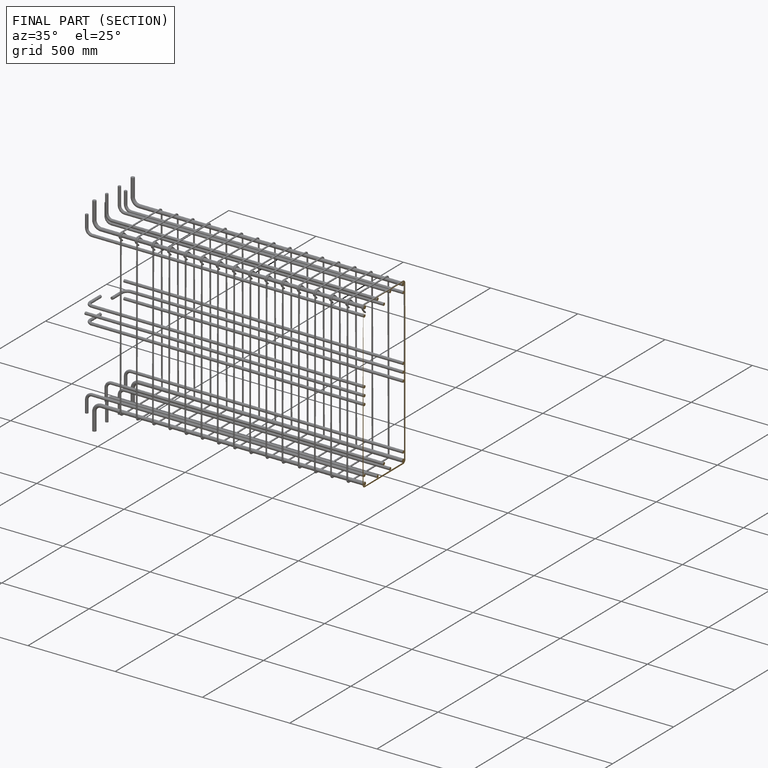
[diagram: finished part — half-section view (interior)]
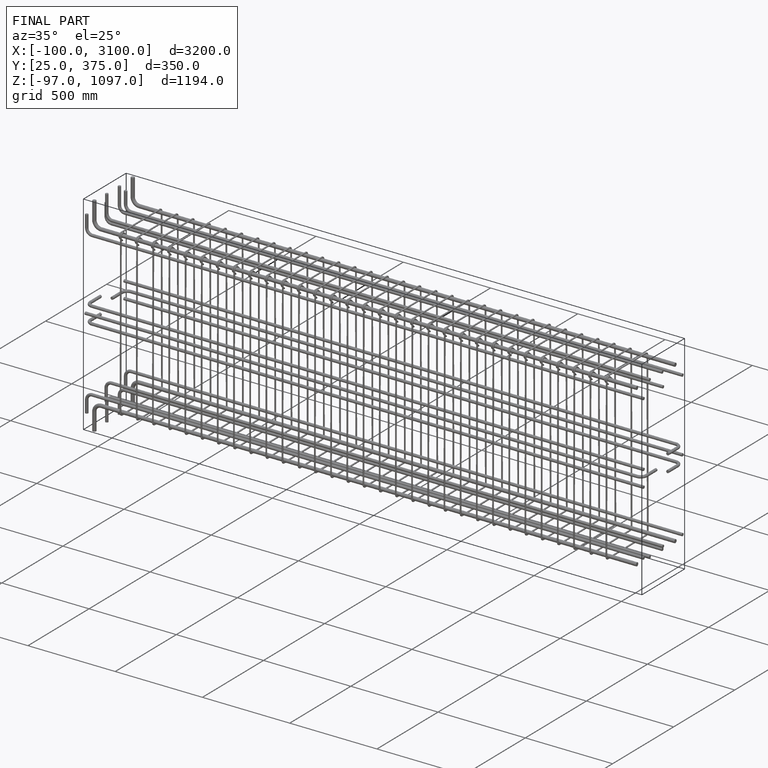
[diagram: finished part — iso view with bounding-box wireframe]
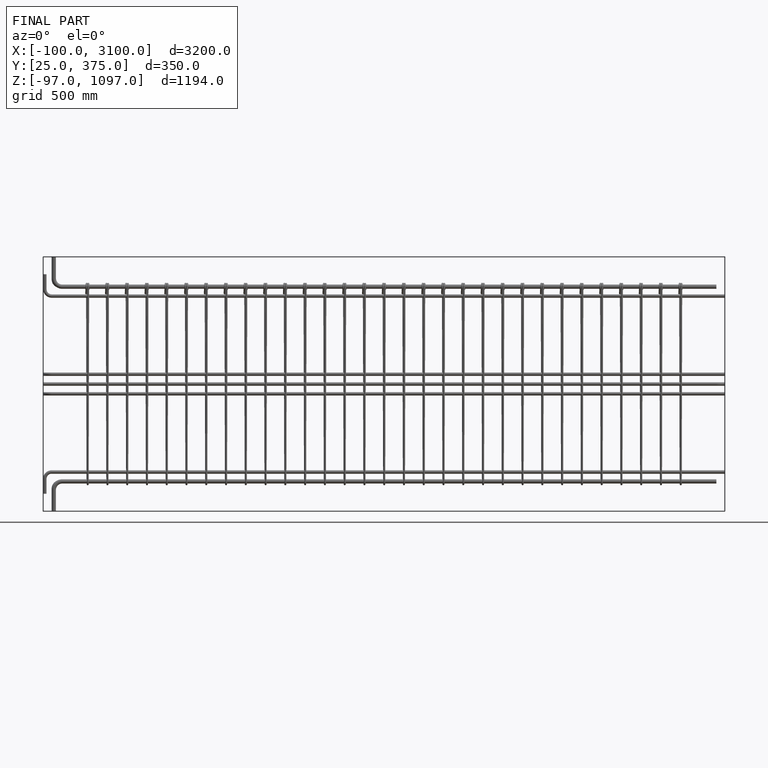
[diagram: finished part — front view with bounding-box wireframe]
